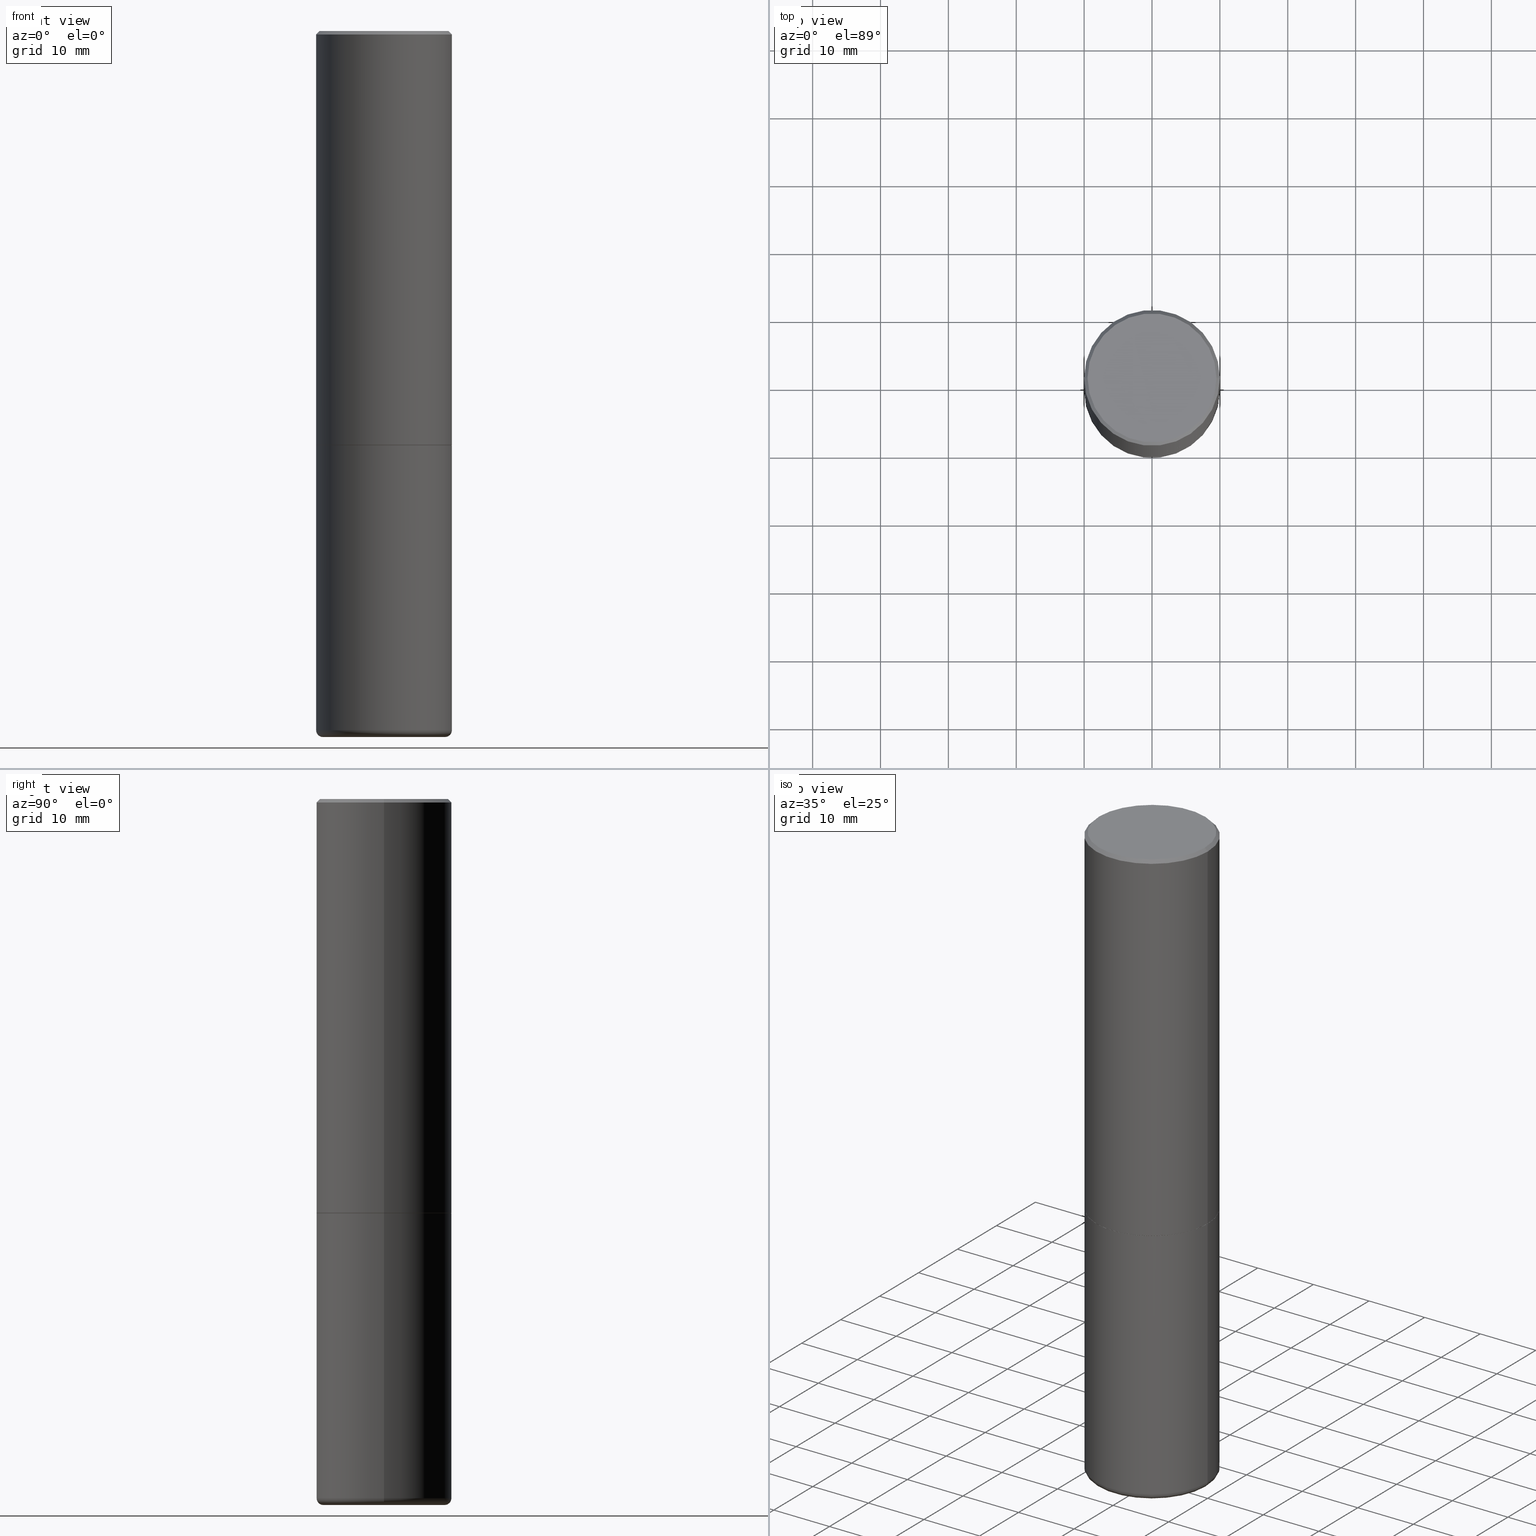
[diagram: canonical four-view strip — front | top / right | iso, engineering-drawing reading convention]
A machine part, canonical four-view strip (front | top / right | iso — engineering-drawing reading convention). The complete STEP part file that produces these views, byte-faithful:
ISO-10303-21;
HEADER;
FILE_DESCRIPTION (( 'STEP AP203' ),
    '1' );
FILE_NAME ('48042.STEP',
    '2024-03-06T19:48:16',
    ( '' ),
    ( '' ),
    'SwSTEP 2.0',
    'SolidWorks 2023',
    '' );
FILE_SCHEMA (( 'CONFIG_CONTROL_DESIGN' ));
ENDSEC;

DATA;
#1 = DIMENSIONAL_EXPONENTS ( 1.000000000000000000, 0.000000000000000000, 0.000000000000000000, 0.000000000000000000, 0.000000000000000000, 0.000000000000000000, 0.000000000000000000 ) ;
#2 = DIRECTION ( 'NONE',  ( -2.445468806185136597E-29, 3.491481338843145583E-15, 1.000000000000000000 ) ) ;
#3 = LINE ( 'NONE', #131, #76 ) ;
#4 = PERSON_AND_ORGANIZATION ( #150, #357 ) ;
#5 = PRODUCT_DEFINITION ( 'UNKNOWN', '', #220, #226 ) ;
#6 = CIRCLE ( 'NONE', #156, 0.3937000000000000499 ) ;
#7 = VECTOR ( 'NONE', #217, 39.37007874015748143 ) ;
#8 = CARTESIAN_POINT ( 'NONE',  ( 0.3543000000000000038, -1.676993401859750628E-14, -4.094500000000000028 ) ) ;
#9 = PERSON_AND_ORGANIZATION ( #150, #357 ) ;
#10 = ORIENTED_EDGE ( 'NONE', *, *, #400, .T. ) ;
#11 = CARTESIAN_POINT ( 'NONE',  ( 2.609533152651355831E-15, 0.3736999999999997546, -1.172442689132570013E-15 ) ) ;
#12 = ORIENTED_EDGE ( 'NONE', *, *, #137, .T. ) ;
#13 = CC_DESIGN_PERSON_AND_ORGANIZATION_ASSIGNMENT ( #197, #69, ( #5 ) ) ;
#14 = DIRECTION ( 'NONE',  ( -2.445468806185136597E-29, 3.491481338843145583E-15, 1.000000000000000000 ) ) ;
#15 = CYLINDRICAL_SURFACE ( 'NONE', #49, 0.3937000000000000499 ) ;
#16 = AXIS2_PLACEMENT_3D ( 'NONE', #342, #379, #370 ) ;
#17 = VERTEX_POINT ( 'NONE', #366 ) ;
#18 = DIRECTION ( 'NONE',  ( 1.000000000000000000, -6.982962677686265922E-15, 4.876176775795935793E-29 ) ) ;
#19 = EDGE_CURVE ( 'NONE', #246, #73, #183, .T. ) ;
#20 = ORIENTED_EDGE ( 'NONE', *, *, #104, .F. ) ;
#21 = FACE_OUTER_BOUND ( 'NONE', #142, .T. ) ;
#22 = CLOSED_SHELL ( 'NONE', ( #55, #275, #367, #302, #216, #392, #378, #120 ) ) ;
#23 = VECTOR ( 'NONE', #91, 39.37007874015748143 ) ;
#24 = VERTEX_POINT ( 'NONE', #311 ) ;
#25 = CARTESIAN_POINT ( 'NONE',  ( 5.873037884934225470E-29, -8.385141583365700419E-15, -2.401600000000000623 ) ) ;
#26 =( LENGTH_UNIT ( ) NAMED_UNIT ( * ) SI_UNIT ( $, .METRE. ) );
#27 = CIRCLE ( 'NONE', #113, 0.3736999999999997546 ) ;
#28 = EDGE_CURVE ( 'NONE', #236, #24, #294, .T. ) ;
#29 = DIRECTION ( 'NONE',  ( 2.438088387897960049E-29, -3.491481338843145188E-15, -1.000000000000000000 ) ) ;
#30 = EDGE_LOOP ( 'NONE', ( #165, #12 ) ) ;
#31 = COORDINATED_UNIVERSAL_TIME_OFFSET ( 5, 0, .BEHIND. ) ;
#32 = ORIENTED_EDGE ( 'NONE', *, *, #182, .T. ) ;
#33 = DIRECTION ( 'NONE',  ( -2.445468806185136877E-29, 3.491481338843145188E-15, 1.000000000000000000 ) ) ;
#34 = PERSON_AND_ORGANIZATION ( #150, #357 ) ;
#35 = EDGE_LOOP ( 'NONE', ( #200, #106 ) ) ;
#36 = DIRECTION ( 'NONE',  ( 0.7071067811864267805, -2.468850131080992517E-15, 0.7071067811866682540 ) ) ;
#37 = DATE_AND_TIME ( #282, #89 ) ;
#38 = ORIENTED_EDGE ( 'NONE', *, *, #348, .F. ) ;
#39 = COORDINATED_UNIVERSAL_TIME_OFFSET ( 5, 0, .BEHIND. ) ;
#40 = DIRECTION ( 'NONE',  ( 2.445468806185136597E-29, -3.491481338843145583E-15, -1.000000000000000000 ) ) ;
#41 = AXIS2_PLACEMENT_3D ( 'NONE', #211, #40, #228 ) ;
#42 = AXIS2_PLACEMENT_3D ( 'NONE', #125, #247, #407 ) ;
#43 = LINE ( 'NONE', #232, #118 ) ;
#44 = ORIENTED_EDGE ( 'NONE', *, *, #110, .T. ) ;
#45 = CARTESIAN_POINT ( 'NONE',  ( -0.3926999999999999935, -5.589541805687562660E-15, -2.401600000000000623 ) ) ;
#46 = DIRECTION ( 'NONE',  ( 0.7071067811865460184, -7.319954787623251312E-15, -0.7071067811865490160 ) ) ;
#47 = ORIENTED_EDGE ( 'NONE', *, *, #348, .T. ) ;
#48 = DIRECTION ( 'NONE',  ( -2.438088387897960049E-29, 3.491481338843145188E-15, 1.000000000000000000 ) ) ;
#49 = AXIS2_PLACEMENT_3D ( 'NONE', #396, #243, #123 ) ;
#50 = DIRECTION ( 'NONE',  ( -2.445468806185136877E-29, 3.491481338843145188E-15, 1.000000000000000000 ) ) ;
#51 = FACE_OUTER_BOUND ( 'NONE', #330, .T. ) ;
#52 = EDGE_CURVE ( 'NONE', #135, #147, #305, .T. ) ;
#53 = CARTESIAN_POINT ( 'NONE',  ( -6.471878768878362764E-45, 9.240127656358773134E-31, 2.646477743862255178E-16 ) ) ;
#54 = PRODUCT ( '48042', '48042', '', ( #224 ) ) ;
#55 = ADVANCED_FACE ( 'NONE', ( #398 ), #380, .T. ) ;
#56 = EDGE_LOOP ( 'NONE', ( #47, #212, #314, #335 ) ) ;
#57 = CIRCLE ( 'NONE', #414, 0.3926999999999999935 ) ;
#58 = PRODUCT_DEFINITION_SHAPE ( 'NONE', 'NONE',  #5 ) ;
#59 = CARTESIAN_POINT ( 'NONE',  ( -0.3937000000000000499, 2.679362779428219918E-15, -0.02000000000000008715 ) ) ;
#60 = DIRECTION ( 'NONE',  ( -2.445468806185136597E-29, 3.491481338843145583E-15, 1.000000000000000000 ) ) ;
#61 = AXIS2_PLACEMENT_3D ( 'NONE', #343, #93, #188 ) ;
#62 = AXIS2_PLACEMENT_3D ( 'NONE', #355, #222, #84 ) ;
#63 = CARTESIAN_POINT ( 'NONE',  ( -0.3937000000000000499, 2.679362779428219918E-15, -0.02000000000000008715 ) ) ;
#64 = CALENDAR_DATE ( 2024, 6, 3 ) ;
#65 = FACE_OUTER_BOUND ( 'NONE', #112, .T. ) ;
#66 = COORDINATED_UNIVERSAL_TIME_OFFSET ( 5, 0, .BEHIND. ) ;
#67 = VERTEX_POINT ( 'NONE', #45 ) ;
#68 = AXIS2_PLACEMENT_3D ( 'NONE', #154, #148, #81 ) ;
#69 = PERSON_AND_ORGANIZATION_ROLE ( 'creator' ) ;
#70 = DIRECTION ( 'NONE',  ( 7.105427357601001859E-15, 1.000000000000000000, -3.491481338843145583E-15 ) ) ;
#71 = EDGE_CURVE ( 'NONE', #208, #270, #43, .T. ) ;
#72 = DIRECTION ( 'NONE',  ( -2.445468806185136877E-29, 3.491481338843145188E-15, 1.000000000000000000 ) ) ;
#73 = VERTEX_POINT ( 'NONE', #175 ) ;
#74 = CARTESIAN_POINT ( 'NONE',  ( 5.873037884934224349E-29, -8.385141583365698841E-15, -2.401600000000000179 ) ) ;
#75 = ORIENTED_EDGE ( 'NONE', *, *, #103, .F. ) ;
#76 = VECTOR ( 'NONE', #72, 39.37007874015748143 ) ;
#77 = CIRCLE ( 'NONE', #68, 0.3937000000000002720 ) ;
#78 = CC_DESIGN_DATE_AND_TIME_ASSIGNMENT ( #168, #266, ( #257 ) ) ;
#79 = EDGE_LOOP ( 'NONE', ( #368, #373, #213, #20 ) ) ;
#80 = CARTESIAN_POINT ( 'NONE',  ( 5.873037884934225470E-29, -8.385141583365700419E-15, -2.401600000000000623 ) ) ;
#81 = DIRECTION ( 'NONE',  ( 1.000000000000000000, -6.982962677686265922E-15, 0.000000000000000000 ) ) ;
#82 = CIRCLE ( 'NONE', #375, 0.3937000000000000499 ) ;
#83 = CC_DESIGN_APPROVAL ( #193, ( #257 ) ) ;
#84 = DIRECTION ( 'NONE',  ( 1.000000000000000000, -6.982962677686266711E-15, 4.876176775795935793E-29 ) ) ;
#85 = CARTESIAN_POINT ( 'NONE',  ( 0.3937000000000000499, -2.770807688499515734E-15, -0.02000000000000008715 ) ) ;
#86 = ORIENTED_EDGE ( 'NONE', *, *, #52, .T. ) ;
#87 = DIRECTION ( 'NONE',  ( -2.445468806185136597E-29, 3.491481338843145583E-15, 1.000000000000000000 ) ) ;
#88 = CIRCLE ( 'NONE', #61, 0.3937000000000002720 ) ;
#89 = LOCAL_TIME ( 14, 48, 16.00000000000000000, #31 ) ;
#90 = DIRECTION ( 'NONE',  ( 1.000000000000000000, 0.000000000000000000, 0.000000000000000000 ) ) ;
#91 = DIRECTION ( 'NONE',  ( -0.7071067811865460184, 2.468850131082241283E-15, -0.7071067811865490160 ) ) ;
#92 = CIRCLE ( 'NONE', #346, 0.3937000000000000499 ) ;
#93 = DIRECTION ( 'NONE',  ( -2.445468806185136597E-29, 3.491481338843145583E-15, 1.000000000000000000 ) ) ;
#94 = DIRECTION ( 'NONE',  ( 1.000000000000000000, -6.982962677686265922E-15, 0.000000000000000000 ) ) ;
#95 = CALENDAR_DATE ( 2024, 6, 3 ) ;
#96 = ORIENTED_EDGE ( 'NONE', *, *, #234, .F. ) ;
#97 = CYLINDRICAL_SURFACE ( 'NONE', #62, 0.3937000000000001609 ) ;
#98 = DIRECTION ( 'NONE',  ( 2.438088387897960049E-29, -3.491481338843145188E-15, -1.000000000000000000 ) ) ;
#99 = PERSON_AND_ORGANIZATION_ROLE ( 'classification_officer' ) ;
#100 = LOCAL_TIME ( 14, 48, 16.00000000000000000, #66 ) ;
#101 = FACE_OUTER_BOUND ( 'NONE', #166, .T. ) ;
#102 = DIRECTION ( 'NONE',  ( 1.000000000000000000, -6.982962677686265922E-15, 0.000000000000000000 ) ) ;
#103 = EDGE_CURVE ( 'NONE', #67, #208, #256, .T. ) ;
#104 = EDGE_CURVE ( 'NONE', #17, #135, #333, .T. ) ;
#105 = DIRECTION ( 'NONE',  ( 1.000000000000000000, -6.982962677686265133E-15, 0.000000000000000000 ) ) ;
#106 = ORIENTED_EDGE ( 'NONE', *, *, #134, .F. ) ;
#107 = DIRECTION ( 'NONE',  ( -2.445468806185136597E-29, 3.491481338843145583E-15, 1.000000000000000000 ) ) ;
#108 = ORIENTED_EDGE ( 'NONE', *, *, #137, .F. ) ;
#109 = AXIS2_PLACEMENT_3D ( 'NONE', #204, #170, #293 ) ;
#110 = EDGE_CURVE ( 'NONE', #135, #17, #82, .T. ) ;
#111 = FACE_OUTER_BOUND ( 'NONE', #262, .T. ) ;
#112 = EDGE_LOOP ( 'NONE', ( #32, #244, #301, #248 ) ) ;
#113 = AXIS2_PLACEMENT_3D ( 'NONE', #53, #87, #152 ) ;
#114 = ORIENTED_EDGE ( 'NONE', *, *, #271, .T. ) ;
#115 = VERTEX_POINT ( 'NONE', #358 ) ;
#116 = APPROVAL ( #417, 'UNSPECIFIED' ) ;
#117 = EDGE_CURVE ( 'NONE', #270, #73, #3, .T. ) ;
#118 = VECTOR ( 'NONE', #36, 39.37007874015748143 ) ;
#119 = AXIS2_PLACEMENT_3D ( 'NONE', #215, #48, #18 ) ;
#120 = ADVANCED_FACE ( 'NONE', ( #101 ), #235, .F. ) ;
#121 = DIRECTION ( 'NONE',  ( -1.000000000000000000, 6.982962677686265922E-15, -4.876176775795935793E-29 ) ) ;
#122 = DIRECTION ( 'NONE',  ( 1.000000000000000000, -6.982962677686265922E-15, 4.876176775795935793E-29 ) ) ;
#123 = DIRECTION ( 'NONE',  ( 1.000000000000000000, -6.982962677686265922E-15, 4.876176775795935793E-29 ) ) ;
#124 = CARTESIAN_POINT ( 'NONE',  ( 0.3543000000000000038, -1.663236965384708391E-14, -4.055100000000000371 ) ) ;
#125 = CARTESIAN_POINT ( 'NONE',  ( 5.873037884934225470E-29, -8.385141583365700419E-15, -2.401600000000000623 ) ) ;
#126 = DIRECTION ( 'NONE',  ( 1.000000000000000000, -6.982962677686266711E-15, 4.877734241229879050E-29 ) ) ;
#127 = PERSON_AND_ORGANIZATION ( #150, #357 ) ;
#128 = APPROVAL_DATE_TIME ( #359, #116 ) ;
#129 = DIRECTION ( 'NONE',  ( -2.445468806185136597E-29, 3.491481338843145583E-15, 1.000000000000000000 ) ) ;
#130 = APPROVAL_STATUS ( 'not_yet_approved' ) ;
#131 = CARTESIAN_POINT ( 'NONE',  ( 0.3937000000000001609, -2.749192406205084400E-15, 1.919750796630860732E-29 ) ) ;
#132 = CARTESIAN_POINT ( 'NONE',  ( 4.890937612370294178E-31, -6.982962677686321191E-17, -0.02000000000000008715 ) ) ;
#134 = EDGE_CURVE ( 'NONE', #24, #236, #184, .T. ) ;
#133 = AXIS2_PLACEMENT_3D ( 'NONE', #390, #173, #299 ) ;
#135 = VERTEX_POINT ( 'NONE', #138 ) ;
#136 = LOCAL_TIME ( 14, 48, 16.00000000000000000, #39 ) ;
#137 = EDGE_CURVE ( 'NONE', #238, #147, #6, .T. ) ;
#138 = CARTESIAN_POINT ( 'NONE',  ( 0.3937000000000001054, -1.690749838334792550E-14, -4.055100000000000371 ) ) ;
#139 = PERSON_AND_ORGANIZATION_ROLE ( 'design_supplier' ) ;
#140 = EDGE_CURVE ( 'NONE', #147, #238, #412, .T. ) ;
#141 = DIRECTION ( 'NONE',  ( 1.000000000000000000, -6.982962677686268288E-15, 0.000000000000000000 ) ) ;
#142 = EDGE_LOOP ( 'NONE', ( #38, #75 ) ) ;
#143 = LOCAL_TIME ( 14, 48, 16.00000000000000000, #164 ) ;
#144 = ORIENTED_EDGE ( 'NONE', *, *, #267, .F. ) ;
#145 = DIRECTION ( 'NONE',  ( -2.445468806185136597E-29, 3.491481338843145583E-15, 1.000000000000000000 ) ) ;
#146 = ORIENTED_EDGE ( 'NONE', *, *, #71, .T. ) ;
#147 = VERTEX_POINT ( 'NONE', #363 ) ;
#148 = DIRECTION ( 'NONE',  ( -2.445468806185136597E-29, 3.491481338843145583E-15, 1.000000000000000000 ) ) ;
#149 = EDGE_CURVE ( 'NONE', #17, #238, #157, .T. ) ;
#150 = PERSON ( 'UNSPECIFIED', 'UNSPECIFIED', 'UNSPECIFIED', ('UNSPECIFIED'), ('UNSPECIFIED'), ('UNSPECIFIED') ) ;
#151 = VERTEX_POINT ( 'NONE', #63 ) ;
#152 = DIRECTION ( 'NONE',  ( 1.000000000000000000, -6.982962677686266711E-15, 4.877734241229879050E-29 ) ) ;
#153 = CARTESIAN_POINT ( 'NONE',  ( 5.873037884934224349E-29, -8.385141583365698841E-15, -2.401600000000000179 ) ) ;
#154 = CARTESIAN_POINT ( 'NONE',  ( 5.870592416128038746E-29, -8.381650102026855834E-15, -2.400600000000000289 ) ) ;
#155 = DIRECTION ( 'NONE',  ( 1.000000000000000000, -6.982962677686266711E-15, 4.876176775795935793E-29 ) ) ;
#156 = AXIS2_PLACEMENT_3D ( 'NONE', #265, #393, #105 ) ;
#157 = LINE ( 'NONE', #382, #389 ) ;
#158 = CC_DESIGN_PERSON_AND_ORGANIZATION_ASSIGNMENT ( #194, #253, ( #54 ) ) ;
#159 = PLANE ( 'NONE',  #119 ) ;
#160 = EDGE_CURVE ( 'NONE', #236, #135, #240, .T. ) ;
#161 = ADVANCED_FACE ( 'NONE', ( #381 ), #219, .T. ) ;
#162 = AXIS2_PLACEMENT_3D ( 'NONE', #124, #409, #191 ) ;
#163 = CONICAL_SURFACE ( 'NONE', #41, 0.3937000000000000499, 0.7853981633974461696 ) ;
#164 = COORDINATED_UNIVERSAL_TIME_OFFSET ( 5, 0, .BEHIND. ) ;
#165 = ORIENTED_EDGE ( 'NONE', *, *, #140, .T. ) ;
#166 = EDGE_LOOP ( 'NONE', ( #268, #413 ) ) ;
#167 = DIRECTION ( 'NONE',  ( 1.000000000000000000, -6.982962677686267499E-15, 0.000000000000000000 ) ) ;
#168 = DATE_AND_TIME ( #323, #136 ) ;
#169 = MANIFOLD_SOLID_BREP ( 'Body-Move/Copy2[2]', #22 ) ;
#170 = DIRECTION ( 'NONE',  ( -2.445468806185136597E-29, 3.491481338843145583E-15, 1.000000000000000000 ) ) ;
#171 = CLOSED_SHELL ( 'NONE', ( #186, #230, #338, #258, #161, #408 ) ) ;
#172 = AXIS2_PLACEMENT_3D ( 'NONE', #181, #60, #126 ) ;
#173 = DIRECTION ( 'NONE',  ( -2.445468806185136597E-29, 3.491481338843145583E-15, 1.000000000000000000 ) ) ;
#174 = MANIFOLD_SOLID_BREP ( 'Body-Move/Copy2[1]', #171 ) ;
#175 = CARTESIAN_POINT ( 'NONE',  ( 0.3937000000000000499, -2.770807688499515734E-15, -0.02000000000000008715 ) ) ;
#176 = CARTESIAN_POINT ( 'NONE',  ( 0.3736999999999997546, -2.667287895133366781E-15, 2.646477743862439574E-16 ) ) ;
#177 = DIRECTION ( 'NONE',  ( -2.445468806185136597E-29, 3.491481338843145583E-15, 1.000000000000000000 ) ) ;
#178 = AXIS2_PLACEMENT_3D ( 'NONE', #80, #334, #272 ) ;
#179 = VECTOR ( 'NONE', #180, 39.37007874015748143 ) ;
#180 = DIRECTION ( 'NONE',  ( -2.445468806185136877E-29, 3.491481338843145188E-15, 1.000000000000000000 ) ) ;
#181 = CARTESIAN_POINT ( 'NONE',  ( -6.471878768878362764E-45, 9.240127656358773134E-31, 2.646477743862255178E-16 ) ) ;
#182 = EDGE_CURVE ( 'NONE', #270, #115, #88, .T. ) ;
#183 = LINE ( 'NONE', #85, #303 ) ;
#184 = CIRCLE ( 'NONE', #109, 0.3543000000000000038 ) ;
#185 = AXIS2_PLACEMENT_3D ( 'NONE', #292, #290, #155 ) ;
#186 = ADVANCED_FACE ( 'NONE', ( #316 ), #195, .T. ) ;
#187 = FACE_OUTER_BOUND ( 'NONE', #283, .T. ) ;
#188 = DIRECTION ( 'NONE',  ( 1.000000000000000000, -6.982962677686265922E-15, 0.000000000000000000 ) ) ;
#189 = LINE ( 'NONE', #59, #23 ) ;
#190 = AXIS2_PLACEMENT_3D ( 'NONE', #237, #331, #141 ) ;
#191 = DIRECTION ( 'NONE',  ( 1.000000000000000000, -6.982962677686267499E-15, 0.000000000000000000 ) ) ;
#192 = APPROVAL_PERSON_ORGANIZATION ( #9, #116, #352 ) ;
#193 = APPROVAL ( #231, 'UNSPECIFIED' ) ;
#194 = PERSON_AND_ORGANIZATION ( #150, #357 ) ;
#195 = CYLINDRICAL_SURFACE ( 'NONE', #371, 0.3937000000000000499 ) ;
#196 = PLANE ( 'NONE',  #254 ) ;
#197 = PERSON_AND_ORGANIZATION ( #150, #357 ) ;
#198 = ORIENTED_EDGE ( 'NONE', *, *, #400, .F. ) ;
#199 = AXIS2_PLACEMENT_3D ( 'NONE', #11, #98, #328 ) ;
#200 = ORIENTED_EDGE ( 'NONE', *, *, #28, .F. ) ;
#201 = CARTESIAN_POINT ( 'NONE',  ( 0.3926999999999999935, -1.112735102689309762E-14, -2.401600000000000623 ) ) ;
#202 = SHAPE_DEFINITION_REPRESENTATION ( #58, #297 ) ;
#203 = CYLINDRICAL_SURFACE ( 'NONE', #185, 0.3937000000000001609 ) ;
#204 = CARTESIAN_POINT ( 'NONE',  ( 1.001297202692504215E-28, -1.429587034189326149E-14, -4.094500000000000028 ) ) ;
#205 = DATE_AND_TIME ( #95, #100 ) ;
#206 = EDGE_LOOP ( 'NONE', ( #416, #10, #354, #96 ) ) ;
#207 =( GEOMETRIC_REPRESENTATION_CONTEXT ( 3 ) GLOBAL_UNCERTAINTY_ASSIGNED_CONTEXT ( ( #264 ) ) GLOBAL_UNIT_ASSIGNED_CONTEXT ( ( #308, #223, #315 ) ) REPRESENTATION_CONTEXT ( 'NONE', 'WORKASPACE' ) );
#208 = VERTEX_POINT ( 'NONE', #201 ) ;
#209 = FACE_OUTER_BOUND ( 'NONE', #30, .T. ) ;
#210 = APPROVAL ( #130, 'UNSPECIFIED' ) ;
#211 = CARTESIAN_POINT ( 'NONE',  ( 4.890937612370294178E-31, -6.982962677686321191E-17, -0.02000000000000008715 ) ) ;
#212 = ORIENTED_EDGE ( 'NONE', *, *, #263, .T. ) ;
#213 = ORIENTED_EDGE ( 'NONE', *, *, #160, .T. ) ;
#214 = DIRECTION ( 'NONE',  ( -1.000000000000000000, 6.982962677686265922E-15, -4.876176775795935793E-29 ) ) ;
#215 = CARTESIAN_POINT ( 'NONE',  ( 5.873037884934225470E-29, -8.385141583365698841E-15, -2.401600000000000623 ) ) ;
#216 = ADVANCED_FACE ( 'NONE', ( #325 ), #97, .T. ) ;
#217 = DIRECTION ( 'NONE',  ( -0.7071067811864267805, 7.493145998869918709E-15, 0.7071067811866682540 ) ) ;
#218 = EDGE_LOOP ( 'NONE', ( #418, #337, #86, #108 ) ) ;
#219 = TOROIDAL_SURFACE ( 'NONE', #394, 0.3543000000000000038, 0.03940000000000005997 ) ;
#220 = PRODUCT_DEFINITION_FORMATION_WITH_SPECIFIED_SOURCE ( 'ANY', '', #54, .NOT_KNOWN. ) ;
#221 = LINE ( 'NONE', #318, #179 ) ;
#222 = DIRECTION ( 'NONE',  ( -2.445468806185136597E-29, 3.491481338843145583E-15, 1.000000000000000000 ) ) ;
#223 =( NAMED_UNIT ( * ) PLANE_ANGLE_UNIT ( ) SI_UNIT ( $, .RADIAN. ) );
#224 = MECHANICAL_CONTEXT ( 'NONE', #277, 'mechanical' ) ;
#225 = AXIS2_PLACEMENT_3D ( 'NONE', #276, #177, #402 ) ;
#226 = DESIGN_CONTEXT ( 'detailed design', #365, 'design' ) ;
#227 = CONICAL_SURFACE ( 'NONE', #42, 0.3926999999999999935, 0.7853981633972775267 ) ;
#228 = DIRECTION ( 'NONE',  ( -1.000000000000000000, 6.982962677686265922E-15, 0.000000000000000000 ) ) ;
#229 = CARTESIAN_POINT ( 'NONE',  ( 9.916620555961347550E-29, -1.415830597714284070E-14, -4.055100000000000371 ) ) ;
#230 = ADVANCED_FACE ( 'NONE', ( #51 ), #304, .T. ) ;
#231 = APPROVAL_STATUS ( 'not_yet_approved' ) ;
#232 = CARTESIAN_POINT ( 'NONE',  ( 0.3926999999999999935, -1.112735102689309762E-14, -2.401600000000000623 ) ) ;
#233 = AXIS2_PLACEMENT_3D ( 'NONE', #251, #129, #351 ) ;
#234 = EDGE_CURVE ( 'NONE', #151, #73, #92, .T. ) ;
#235 = PLANE ( 'NONE',  #199 ) ;
#236 = VERTEX_POINT ( 'NONE', #8 ) ;
#237 = CARTESIAN_POINT ( 'NONE',  ( 5.873037884934225470E-29, -8.385141583365700419E-15, -2.401600000000000623 ) ) ;
#238 = VERTEX_POINT ( 'NONE', #286 ) ;
#239 = DIRECTION ( 'NONE',  ( 1.000000000000000000, -6.982962677686265133E-15, 0.000000000000000000 ) ) ;
#240 = CIRCLE ( 'NONE', #162, 0.03940000000000005997 ) ;
#241 = CIRCLE ( 'NONE', #249, 0.3937000000000000499 ) ;
#242 = ORIENTED_EDGE ( 'NONE', *, *, #313, .T. ) ;
#243 = DIRECTION ( 'NONE',  ( -2.445468806185136597E-29, 3.491481338843145583E-15, 1.000000000000000000 ) ) ;
#244 = ORIENTED_EDGE ( 'NONE', *, *, #344, .T. ) ;
#245 = PRODUCT_RELATED_PRODUCT_CATEGORY ( 'detail', '', ( #54 ) ) ;
#246 = VERTEX_POINT ( 'NONE', #176 ) ;
#247 = DIRECTION ( 'NONE',  ( -2.445468806185136597E-29, 3.491481338843145583E-15, 1.000000000000000000 ) ) ;
#248 = ORIENTED_EDGE ( 'NONE', *, *, #117, .F. ) ;
#249 = AXIS2_PLACEMENT_3D ( 'NONE', #291, #2, #94 ) ;
#250 = ORIENTED_EDGE ( 'NONE', *, *, #263, .F. ) ;
#251 = CARTESIAN_POINT ( 'NONE',  ( 9.916620555961347550E-29, -1.415830597714284070E-14, -4.055100000000000371 ) ) ;
#252 = ORIENTED_EDGE ( 'NONE', *, *, #234, .T. ) ;
#253 = PERSON_AND_ORGANIZATION_ROLE ( 'design_owner' ) ;
#254 = AXIS2_PLACEMENT_3D ( 'NONE', #153, #322, #214 ) ;
#255 = DIRECTION ( 'NONE',  ( 1.000000000000000000, -6.982962677686268288E-15, 0.000000000000000000 ) ) ;
#256 = CIRCLE ( 'NONE', #190, 0.3926999999999999935 ) ;
#257 = SECURITY_CLASSIFICATION ( '', '', #415 ) ;
#258 = ADVANCED_FACE ( 'NONE', ( #300 ), #15, .T. ) ;
#259 = APPROVAL_ROLE ( '' ) ;
#260 = PERSON_AND_ORGANIZATION ( #150, #357 ) ;
#261 = DIRECTION ( 'NONE',  ( -2.445468806185136597E-29, 3.491481338843145583E-15, 1.000000000000000000 ) ) ;
#262 = EDGE_LOOP ( 'NONE', ( #144, #369, #114, #320 ) ) ;
#263 = EDGE_CURVE ( 'NONE', #67, #115, #356, .T. ) ;
#264 = UNCERTAINTY_MEASURE_WITH_UNIT (LENGTH_MEASURE( 1.000000000000000082E-05 ), #308, 'distance_accuracy_value', 'NONE');
#265 = CARTESIAN_POINT ( 'NONE',  ( 5.873037884934224349E-29, -8.385141583365698841E-15, -2.401600000000000179 ) ) ;
#266 = DATE_TIME_ROLE ( 'classification_date' ) ;
#267 = EDGE_CURVE ( 'NONE', #246, #374, #27, .T. ) ;
#268 = ORIENTED_EDGE ( 'NONE', *, *, #360, .T. ) ;
#269 = CONICAL_SURFACE ( 'NONE', #16, 0.3937000000000000499, 0.7853981633974461696 ) ;
#270 = VERTEX_POINT ( 'NONE', #347 ) ;
#271 = EDGE_CURVE ( 'NONE', #73, #151, #241, .T. ) ;
#272 = DIRECTION ( 'NONE',  ( 1.000000000000000000, -6.982962677686268288E-15, 0.000000000000000000 ) ) ;
#273 = CARTESIAN_POINT ( 'NONE',  ( 0.3937000000000000499, -2.749192406205083217E-15, 1.919750796630860172E-29 ) ) ;
#274 = CARTESIAN_POINT ( 'NONE',  ( -0.3736999999999997546, 2.644447966039789058E-15, 2.646477743862071275E-16 ) ) ;
#275 = ADVANCED_FACE ( 'NONE', ( #65 ), #203, .T. ) ;
#276 = CARTESIAN_POINT ( 'NONE',  ( 1.001297202692504215E-28, -1.429587034189326149E-14, -4.094500000000000028 ) ) ;
#277 = APPLICATION_CONTEXT ( 'configuration controlled 3d designs of mechanical parts and assemblies' ) ;
#278 = CARTESIAN_POINT ( 'NONE',  ( -0.3926999999999999935, -5.594840260035786640E-15, -2.401600000000000623 ) ) ;
#279 = LENGTH_MEASURE_WITH_UNIT ( LENGTH_MEASURE( 0.02539999999999999897 ), #26 );
#280 = AXIS2_PLACEMENT_3D ( 'NONE', #384, #70, #289 ) ;
#281 = APPLICATION_PROTOCOL_DEFINITION ( 'international standard', 'config_control_design', 1994, #365 ) ;
#282 = CALENDAR_DATE ( 2024, 6, 3 ) ;
#283 = EDGE_LOOP ( 'NONE', ( #298, #397, #364, #252 ) ) ;
#284 = DIRECTION ( 'NONE',  ( 1.000000000000000000, -6.982962677686266711E-15, 4.883557194083112340E-29 ) ) ;
#285 = VECTOR ( 'NONE', #50, 39.37007874015748143 ) ;
#286 = CARTESIAN_POINT ( 'NONE',  ( -0.3937000000000000499, -8.474317029566754196E-15, -2.401600000000000179 ) ) ;
#287 = CALENDAR_DATE ( 2024, 6, 3 ) ;
#288 = ORIENTED_EDGE ( 'NONE', *, *, #140, .F. ) ;
#289 = DIRECTION ( 'NONE',  ( -1.000000000000000000, 7.105427357601014480E-15, 0.000000000000000000 ) ) ;
#290 = DIRECTION ( 'NONE',  ( -2.445468806185136597E-29, 3.491481338843145583E-15, 1.000000000000000000 ) ) ;
#291 = CARTESIAN_POINT ( 'NONE',  ( 4.890937612370294178E-31, -6.982962677686321191E-17, -0.02000000000000008715 ) ) ;
#292 = CARTESIAN_POINT ( 'NONE',  ( 0.000000000000000000, 0.000000000000000000, 0.000000000000000000 ) ) ;
#293 = DIRECTION ( 'NONE',  ( 1.000000000000000000, -6.982962677686266711E-15, 0.000000000000000000 ) ) ;
#294 = CIRCLE ( 'NONE', #225, 0.3543000000000000038 ) ;
#295 = CIRCLE ( 'NONE', #280, 0.03940000000000005997 ) ;
#296 = CARTESIAN_POINT ( 'NONE',  ( 9.916620555961347550E-29, -1.415830597714284070E-14, -4.055100000000000371 ) ) ;
#297 = ADVANCED_BREP_SHAPE_REPRESENTATION ( '48042', ( #174, #169, #395 ), #207 ) ;
#298 = ORIENTED_EDGE ( 'NONE', *, *, #19, .F. ) ;
#299 = DIRECTION ( 'NONE',  ( 1.000000000000000000, -6.982962677686267499E-15, 0.000000000000000000 ) ) ;
#300 = FACE_OUTER_BOUND ( 'NONE', #218, .T. ) ;
#301 = ORIENTED_EDGE ( 'NONE', *, *, #271, .F. ) ;
#302 = ADVANCED_FACE ( 'NONE', ( #187 ), #163, .T. ) ;
#303 = VECTOR ( 'NONE', #46, 39.37007874015748143 ) ;
#304 = TOROIDAL_SURFACE ( 'NONE', #233, 0.3543000000000000038, 0.03940000000000005997 ) ;
#305 = LINE ( 'NONE', #273, #285 ) ;
#306 = EDGE_LOOP ( 'NONE', ( #250, #362, #146, #198 ) ) ;
#307 = PLANE ( 'NONE',  #317 ) ;
#308 =( CONVERSION_BASED_UNIT ( 'INCH', #279 ) LENGTH_UNIT ( ) NAMED_UNIT ( #1 ) );
#309 = ORIENTED_EDGE ( 'NONE', *, *, #160, .F. ) ;
#310 = CC_DESIGN_PERSON_AND_ORGANIZATION_ASSIGNMENT ( #260, #388, ( #220 ) ) ;
#311 = CARTESIAN_POINT ( 'NONE',  ( -0.3543000000000000038, -1.156965832777527483E-14, -4.094500000000000028 ) ) ;
#312 = APPROVAL_PERSON_ORGANIZATION ( #4, #193, #259 ) ;
#313 = EDGE_CURVE ( 'NONE', #24, #17, #295, .T. ) ;
#314 = ORIENTED_EDGE ( 'NONE', *, *, #182, .F. ) ;
#315 =( NAMED_UNIT ( * ) SI_UNIT ( $, .STERADIAN. ) SOLID_ANGLE_UNIT ( ) );
#316 = FACE_OUTER_BOUND ( 'NONE', #387, .T. ) ;
#317 = AXIS2_PLACEMENT_3D ( 'NONE', #404, #29, #121 ) ;
#318 = CARTESIAN_POINT ( 'NONE',  ( -0.3937000000000001609, 2.797406750687515575E-15, -1.936584745033357296E-29 ) ) ;
#319 = DATE_AND_TIME ( #287, #143 ) ;
#320 = ORIENTED_EDGE ( 'NONE', *, *, #410, .F. ) ;
#321 = APPROVAL_PERSON_ORGANIZATION ( #326, #210, #349 ) ;
#322 = DIRECTION ( 'NONE',  ( 2.438088387897960049E-29, -3.491481338843145188E-15, -1.000000000000000000 ) ) ;
#323 = CALENDAR_DATE ( 2024, 6, 3 ) ;
#324 = ORIENTED_EDGE ( 'NONE', *, *, #149, .T. ) ;
#325 = FACE_OUTER_BOUND ( 'NONE', #206, .T. ) ;
#326 = PERSON_AND_ORGANIZATION ( #150, #357 ) ;
#327 = ORIENTED_EDGE ( 'NONE', *, *, #52, .F. ) ;
#328 = DIRECTION ( 'NONE',  ( -1.000000000000000000, 6.982962677686265922E-15, -4.876176775795935793E-29 ) ) ;
#329 = COORDINATED_UNIVERSAL_TIME_OFFSET ( 5, 0, .BEHIND. ) ;
#330 = EDGE_LOOP ( 'NONE', ( #339, #242, #391, #309 ) ) ;
#331 = DIRECTION ( 'NONE',  ( -2.445468806185136597E-29, 3.491481338843145583E-15, 1.000000000000000000 ) ) ;
#332 = CC_DESIGN_PERSON_AND_ORGANIZATION_ASSIGNMENT ( #34, #99, ( #257 ) ) ;
#333 = CIRCLE ( 'NONE', #133, 0.3937000000000000499 ) ;
#334 = DIRECTION ( 'NONE',  ( -2.445468806185136597E-29, 3.491481338843145583E-15, 1.000000000000000000 ) ) ;
#335 = ORIENTED_EDGE ( 'NONE', *, *, #71, .F. ) ;
#336 = FACE_OUTER_BOUND ( 'NONE', #35, .T. ) ;
#337 = ORIENTED_EDGE ( 'NONE', *, *, #104, .T. ) ;
#338 = ADVANCED_FACE ( 'NONE', ( #209 ), #196, .F. ) ;
#339 = ORIENTED_EDGE ( 'NONE', *, *, #28, .T. ) ;
#340 = AXIS2_PLACEMENT_3D ( 'NONE', #74, #107, #239 ) ;
#341 = LOCAL_TIME ( 14, 48, 16.00000000000000000, #329 ) ;
#342 = CARTESIAN_POINT ( 'NONE',  ( 4.890937612370294178E-31, -6.982962677686321191E-17, -0.02000000000000008715 ) ) ;
#343 = CARTESIAN_POINT ( 'NONE',  ( 5.870592416128038746E-29, -8.381650102026855834E-15, -2.400600000000000289 ) ) ;
#344 = EDGE_CURVE ( 'NONE', #115, #151, #221, .T. ) ;
#345 = CARTESIAN_POINT ( 'NONE',  ( 0.000000000000000000, 0.000000000000000000, 0.000000000000000000 ) ) ;
#346 = AXIS2_PLACEMENT_3D ( 'NONE', #132, #261, #102 ) ;
#347 = CARTESIAN_POINT ( 'NONE',  ( 0.3937000000000002720, -1.113084250823194063E-14, -2.400600000000000289 ) ) ;
#348 = EDGE_CURVE ( 'NONE', #208, #67, #57, .T. ) ;
#349 = APPROVAL_ROLE ( '' ) ;
#350 = DIRECTION ( 'NONE',  ( -2.445468806185136597E-29, 3.491481338843145583E-15, 1.000000000000000000 ) ) ;
#351 = DIRECTION ( 'NONE',  ( 1.000000000000000000, -6.982962677686266711E-15, 4.883557194083112340E-29 ) ) ;
#352 = APPROVAL_ROLE ( '' ) ;
#353 = CC_DESIGN_DATE_AND_TIME_ASSIGNMENT ( #37, #383, ( #5 ) ) ;
#354 = ORIENTED_EDGE ( 'NONE', *, *, #117, .T. ) ;
#355 = CARTESIAN_POINT ( 'NONE',  ( 0.000000000000000000, 0.000000000000000000, 0.000000000000000000 ) ) ;
#356 = LINE ( 'NONE', #278, #7 ) ;
#357 = ORGANIZATION ( 'UNSPECIFIED', 'UNSPECIFIED', '' ) ;
#358 = CARTESIAN_POINT ( 'NONE',  ( -0.3937000000000003830, -1.428333113714341032E-15, -2.400600000000000289 ) ) ;
#359 = DATE_AND_TIME ( #64, #341 ) ;
#360 = EDGE_CURVE ( 'NONE', #374, #246, #372, .T. ) ;
#361 = APPROVAL_DATE_TIME ( #319, #193 ) ;
#362 = ORIENTED_EDGE ( 'NONE', *, *, #103, .T. ) ;
#363 = CARTESIAN_POINT ( 'NONE',  ( 0.3937000000000000499, -1.113433398957078206E-14, -2.401600000000000179 ) ) ;
#364 = ORIENTED_EDGE ( 'NONE', *, *, #410, .T. ) ;
#365 = APPLICATION_CONTEXT ( 'configuration controlled 3d designs of mechanical parts and assemblies' ) ;
#366 = CARTESIAN_POINT ( 'NONE',  ( -0.3937000000000001054, -1.136089922645532513E-14, -4.055100000000000371 ) ) ;
#367 = ADVANCED_FACE ( 'NONE', ( #111 ), #269, .T. ) ;
#368 = ORIENTED_EDGE ( 'NONE', *, *, #313, .F. ) ;
#369 = ORIENTED_EDGE ( 'NONE', *, *, #19, .T. ) ;
#370 = DIRECTION ( 'NONE',  ( -1.000000000000000000, 6.982962677686265922E-15, 0.000000000000000000 ) ) ;
#371 = AXIS2_PLACEMENT_3D ( 'NONE', #406, #385, #122 ) ;
#372 = CIRCLE ( 'NONE', #172, 0.3736999999999997546 ) ;
#373 = ORIENTED_EDGE ( 'NONE', *, *, #134, .T. ) ;
#374 = VERTEX_POINT ( 'NONE', #274 ) ;
#375 = AXIS2_PLACEMENT_3D ( 'NONE', #296, #14, #167 ) ;
#376 = CC_DESIGN_SECURITY_CLASSIFICATION ( #257, ( #220 ) ) ;
#377 = DIRECTION ( 'NONE',  ( 0.000000000000000000, 0.000000000000000000, 1.000000000000000000 ) ) ;
#378 = ADVANCED_FACE ( 'NONE', ( #21 ), #159, .F. ) ;
#379 = DIRECTION ( 'NONE',  ( 2.445468806185136597E-29, -3.491481338843145583E-15, -1.000000000000000000 ) ) ;
#380 = CONICAL_SURFACE ( 'NONE', #178, 0.3926999999999999935, 0.7853981633972775267 ) ;
#381 = FACE_OUTER_BOUND ( 'NONE', #79, .T. ) ;
#382 = CARTESIAN_POINT ( 'NONE',  ( -0.3937000000000000499, 2.797406750687514786E-15, -1.936584745033356735E-29 ) ) ;
#383 = DATE_TIME_ROLE ( 'creation_date' ) ;
#384 = CARTESIAN_POINT ( 'NONE',  ( -0.3543000000000000038, -1.164085306434480532E-14, -4.055100000000000371 ) ) ;
#385 = DIRECTION ( 'NONE',  ( -2.445468806185136597E-29, 3.491481338843145583E-15, 1.000000000000000000 ) ) ;
#386 = CC_DESIGN_PERSON_AND_ORGANIZATION_ASSIGNMENT ( #127, #139, ( #220 ) ) ;
#387 = EDGE_LOOP ( 'NONE', ( #44, #324, #288, #327 ) ) ;
#388 = PERSON_AND_ORGANIZATION_ROLE ( 'creator' ) ;
#389 = VECTOR ( 'NONE', #33, 39.37007874015748143 ) ;
#390 = CARTESIAN_POINT ( 'NONE',  ( 9.916620555961347550E-29, -1.415830597714284070E-14, -4.055100000000000371 ) ) ;
#391 = ORIENTED_EDGE ( 'NONE', *, *, #110, .F. ) ;
#392 = ADVANCED_FACE ( 'NONE', ( #399 ), #227, .T. ) ;
#393 = DIRECTION ( 'NONE',  ( -2.445468806185136597E-29, 3.491481338843145583E-15, 1.000000000000000000 ) ) ;
#394 = AXIS2_PLACEMENT_3D ( 'NONE', #229, #350, #284 ) ;
#395 = AXIS2_PLACEMENT_3D ( 'NONE', #345, #377, #90 ) ;
#396 = CARTESIAN_POINT ( 'NONE',  ( 0.000000000000000000, 0.000000000000000000, 0.000000000000000000 ) ) ;
#397 = ORIENTED_EDGE ( 'NONE', *, *, #360, .F. ) ;
#398 = FACE_OUTER_BOUND ( 'NONE', #56, .T. ) ;
#399 = FACE_OUTER_BOUND ( 'NONE', #306, .T. ) ;
#400 = EDGE_CURVE ( 'NONE', #115, #270, #77, .T. ) ;
#401 = CC_DESIGN_APPROVAL ( #116, ( #5 ) ) ;
#402 = DIRECTION ( 'NONE',  ( 1.000000000000000000, -6.982962677686266711E-15, 0.000000000000000000 ) ) ;
#403 = APPLICATION_PROTOCOL_DEFINITION ( 'international standard', 'config_control_design', 1994, #277 ) ;
#404 = CARTESIAN_POINT ( 'NONE',  ( 1.001297202692504215E-28, -1.429587034189326149E-14, -4.094500000000000028 ) ) ;
#405 = CC_DESIGN_APPROVAL ( #210, ( #220 ) ) ;
#406 = CARTESIAN_POINT ( 'NONE',  ( 0.000000000000000000, 0.000000000000000000, 0.000000000000000000 ) ) ;
#407 = DIRECTION ( 'NONE',  ( 1.000000000000000000, -6.982962677686268288E-15, 0.000000000000000000 ) ) ;
#408 = ADVANCED_FACE ( 'NONE', ( #336 ), #307, .T. ) ;
#409 = DIRECTION ( 'NONE',  ( -6.982962677686266711E-15, -1.000000000000000000, 3.491481338843145583E-15 ) ) ;
#410 = EDGE_CURVE ( 'NONE', #374, #151, #189, .T. ) ;
#411 = APPROVAL_DATE_TIME ( #205, #210 ) ;
#412 = CIRCLE ( 'NONE', #340, 0.3937000000000000499 ) ;
#413 = ORIENTED_EDGE ( 'NONE', *, *, #267, .T. ) ;
#414 = AXIS2_PLACEMENT_3D ( 'NONE', #25, #145, #255 ) ;
#415 = SECURITY_CLASSIFICATION_LEVEL ( 'unclassified' ) ;
#416 = ORIENTED_EDGE ( 'NONE', *, *, #344, .F. ) ;
#417 = APPROVAL_STATUS ( 'not_yet_approved' ) ;
#418 = ORIENTED_EDGE ( 'NONE', *, *, #149, .F. ) ;
ENDSEC;
END-ISO-10303-21;
